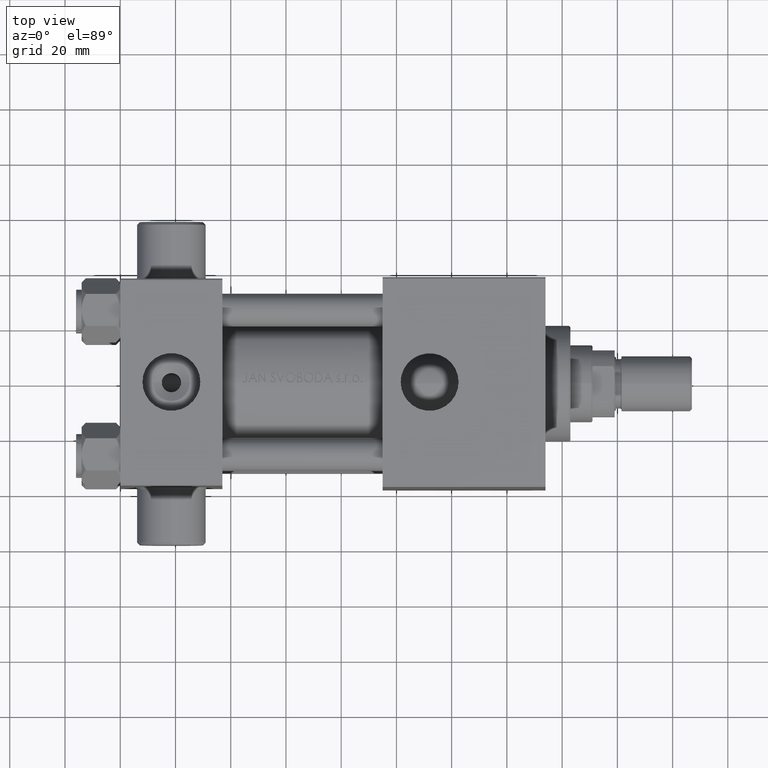
[diagram: clean part render]
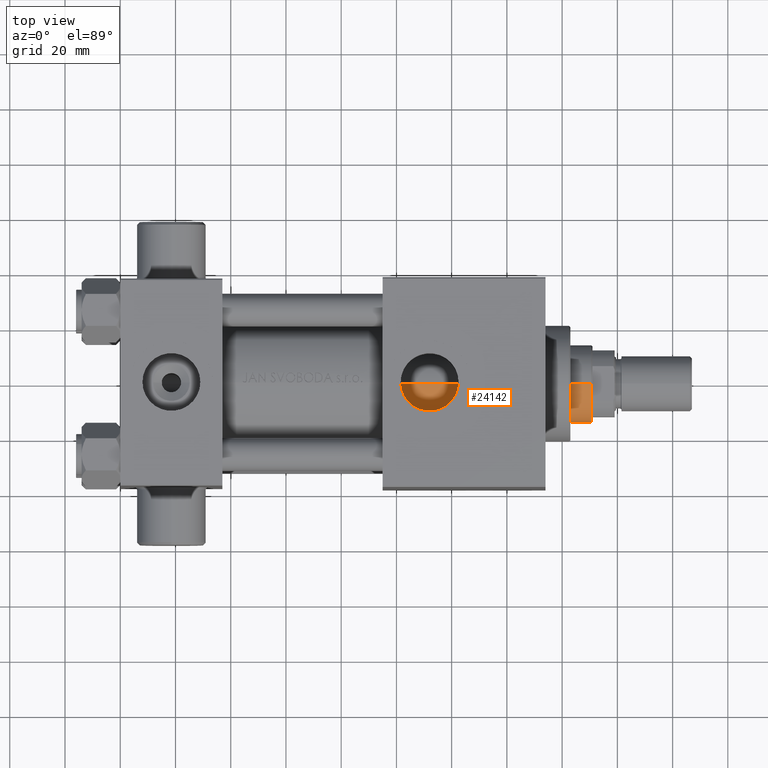
[diagram: same view with one face highlighted and labeled with its STEP entity id]
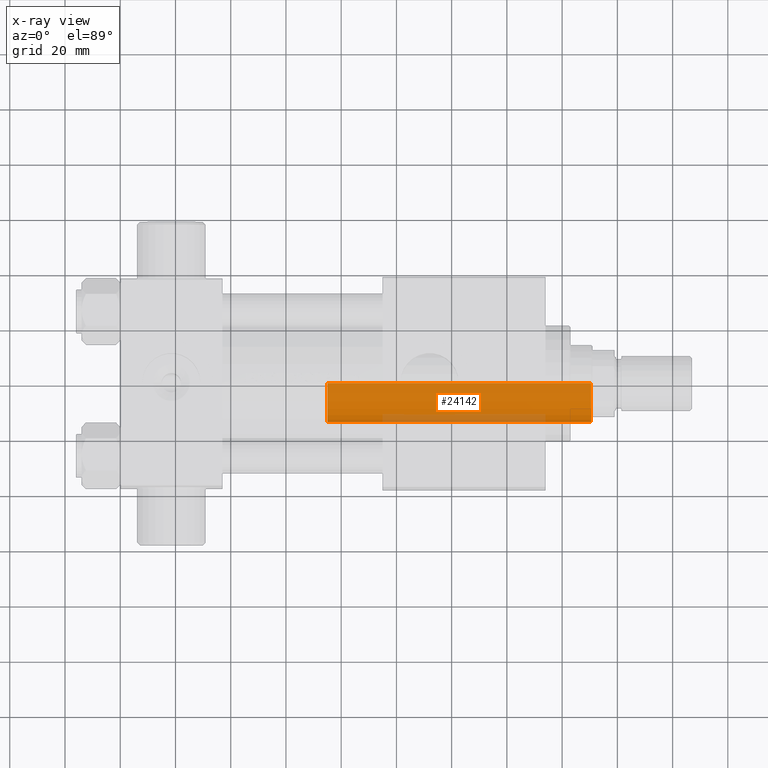
[diagram: x-ray of the same camera — body ghosted, the highlighted face saturated]
A machine part, top view. The second image highlights one B-rep face of the part: STEP entity #24142.
The next image is the same camera in x-ray: the body ghosted, the highlighted face saturated — about 12% of this face is hidden behind the body in this view.
In plain terms, the highlighted cylindrical surface (partial cylindrical patch) has radius 14 mm, axis along (-1, 0, 0).
Its self-contained STEP definition (entity closure, byte-faithful):
#1190 = FACE_OUTER_BOUND ( 'NONE', #11282, .T. ) ;
#2498 = CARTESIAN_POINT ( 'NONE',  ( 14.00000000000000178, 1.714505518806294835E-15, 133.5000000000000284 ) ) ;
#2650 = CIRCLE ( 'NONE', #30342, 14.00000000000000178 ) ;
#3377 = DIRECTION ( 'NONE',  ( -0.000000000000000000, -0.000000000000000000, -1.000000000000000000 ) ) ;
#4484 = DIRECTION ( 'NONE',  ( -0.000000000000000000, -0.000000000000000000, -1.000000000000000000 ) ) ;
#6871 = LINE ( 'NONE', #29404, #38806 ) ;
#11032 = VERTEX_POINT ( 'NONE', #2498 ) ;
#11182 = CARTESIAN_POINT ( 'NONE',  ( 0.000000000000000000, 0.000000000000000000, 38.00000000000000000 ) ) ;
#11282 = EDGE_LOOP ( 'NONE', ( #35923, #28902, #34518, #29451 ) ) ;
#11307 = CARTESIAN_POINT ( 'NONE',  ( -14.00000000000000178, 0.000000000000000000, 133.5000000000000284 ) ) ;
#13487 = CARTESIAN_POINT ( 'NONE',  ( 14.00000000000000178, 1.714505518806294835E-15, 38.00000000000000000 ) ) ;
#14876 = CARTESIAN_POINT ( 'NONE',  ( -14.00000000000000178, 0.000000000000000000, 38.00000000000000000 ) ) ;
#15918 = VERTEX_POINT ( 'NONE', #11307 ) ;
#16267 = EDGE_CURVE ( 'NONE', #22304, #37380, #2650, .T. ) ;
#18625 = DIRECTION ( 'NONE',  ( 1.000000000000000000, 0.000000000000000000, 0.000000000000000000 ) ) ;
#19517 = DIRECTION ( 'NONE',  ( 1.000000000000000000, 0.000000000000000000, 0.000000000000000000 ) ) ;
#20903 = EDGE_CURVE ( 'NONE', #15918, #37380, #28252, .T. ) ;
#21804 = AXIS2_PLACEMENT_3D ( 'NONE', #23492, #46292, #30681 ) ;
#21876 = AXIS2_PLACEMENT_3D ( 'NONE', #23718, #23962, #19517 ) ;
#22304 = VERTEX_POINT ( 'NONE', #13487 ) ;
#23492 = CARTESIAN_POINT ( 'NONE',  ( 0.000000000000000000, 0.000000000000000000, 134.0000000000000000 ) ) ;
#23718 = CARTESIAN_POINT ( 'NONE',  ( 0.000000000000000000, 0.000000000000000000, 133.5000000000000284 ) ) ;
#23962 = DIRECTION ( 'NONE',  ( 0.000000000000000000, 0.000000000000000000, -1.000000000000000000 ) ) ;
#24142 = ADVANCED_FACE ( 'NONE', ( #1190 ), #42589, .T. ) ;
#26830 = EDGE_CURVE ( 'NONE', #15918, #11032, #44808, .T. ) ;
#28252 = LINE ( 'NONE', #38691, #47022 ) ;
#28902 = ORIENTED_EDGE ( 'NONE', *, *, #40217, .T. ) ;
#29404 = CARTESIAN_POINT ( 'NONE',  ( 14.00000000000000178, 1.714505518806294835E-15, 134.0000000000000000 ) ) ;
#29451 = ORIENTED_EDGE ( 'NONE', *, *, #20903, .F. ) ;
#30342 = AXIS2_PLACEMENT_3D ( 'NONE', #11182, #41418, #18625 ) ;
#30681 = DIRECTION ( 'NONE',  ( -1.000000000000000000, 0.000000000000000000, 0.000000000000000000 ) ) ;
#34518 = ORIENTED_EDGE ( 'NONE', *, *, #16267, .T. ) ;
#35923 = ORIENTED_EDGE ( 'NONE', *, *, #26830, .T. ) ;
#37380 = VERTEX_POINT ( 'NONE', #14876 ) ;
#38691 = CARTESIAN_POINT ( 'NONE',  ( -14.00000000000000178, 0.000000000000000000, 134.0000000000000000 ) ) ;
#38806 = VECTOR ( 'NONE', #3377, 1000.000000000000000 ) ;
#40217 = EDGE_CURVE ( 'NONE', #11032, #22304, #6871, .T. ) ;
#41418 = DIRECTION ( 'NONE',  ( 0.000000000000000000, 0.000000000000000000, 1.000000000000000000 ) ) ;
#42589 = CYLINDRICAL_SURFACE ( 'NONE', #21804, 14.00000000000000178 ) ;
#44808 = CIRCLE ( 'NONE', #21876, 14.00000000000000178 ) ;
#46292 = DIRECTION ( 'NONE',  ( -0.000000000000000000, -0.000000000000000000, -1.000000000000000000 ) ) ;
#47022 = VECTOR ( 'NONE', #4484, 1000.000000000000000 ) ;